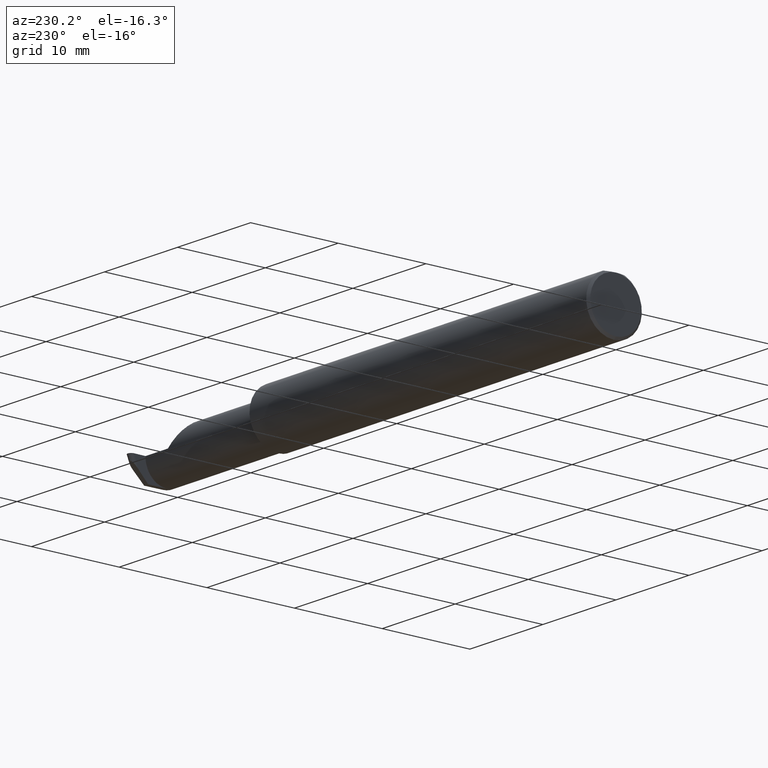
[diagram: clean part render]
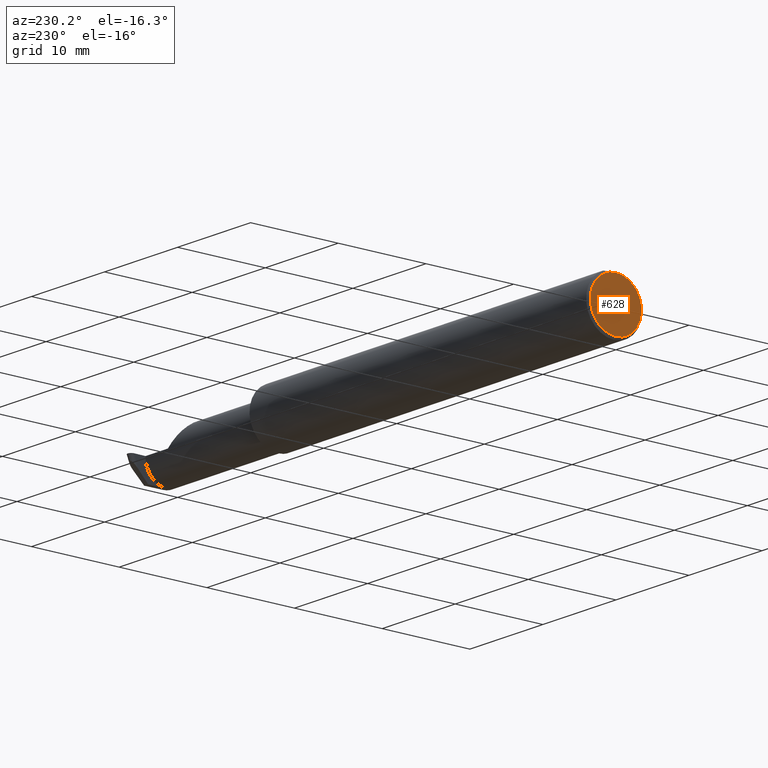
[diagram: same view with one face highlighted and labeled with its STEP entity id]
A machine part, auxiliary view. The second image highlights one B-rep face of the part: STEP entity #628.
In plain terms, the highlighted planar face has unit normal (1, 0, 0).
Its self-contained STEP definition (entity closure, byte-faithful):
#15 = CARTESIAN_POINT ( 'NONE',  ( 0.000000000000000000, 0.000000000000000000, -0.1149999999999997274 ) ) ;
#89 = EDGE_CURVE ( 'NONE', #429, #318, #205, .T. ) ;
#91 = ORIENTED_EDGE ( 'NONE', *, *, #478, .T. ) ;
#115 = AXIS2_PLACEMENT_3D ( 'NONE', #493, #753, #327 ) ;
#117 = CARTESIAN_POINT ( 'NONE',  ( 0.000000000000000000, 3.414809992080329023E-17, 0.1149999999999999217 ) ) ;
#133 = AXIS2_PLACEMENT_3D ( 'NONE', #427, #178, #353 ) ;
#178 = DIRECTION ( 'NONE',  ( 1.000000000000000000, 0.000000000000000000, 0.000000000000000000 ) ) ;
#205 = CIRCLE ( 'NONE', #461, 0.1149999999999997274 ) ;
#318 = VERTEX_POINT ( 'NONE', #117 ) ;
#327 = DIRECTION ( 'NONE',  ( 0.000000000000000000, 0.000000000000000000, -1.000000000000000000 ) ) ;
#353 = DIRECTION ( 'NONE',  ( 0.000000000000000000, 0.000000000000000000, -1.000000000000000000 ) ) ;
#397 = DIRECTION ( 'NONE',  ( -1.000000000000000000, -0.000000000000000000, -0.000000000000000000 ) ) ;
#406 = PLANE ( 'NONE',  #133 ) ;
#427 = CARTESIAN_POINT ( 'NONE',  ( 0.000000000000000000, 0.000000000000000000, 0.000000000000000000 ) ) ;
#429 = VERTEX_POINT ( 'NONE', #15 ) ;
#461 = AXIS2_PLACEMENT_3D ( 'NONE', #756, #397, #640 ) ;
#478 = EDGE_CURVE ( 'NONE', #318, #429, #764, .T. ) ;
#493 = CARTESIAN_POINT ( 'NONE',  ( 0.000000000000000000, 0.000000000000000000, 0.000000000000000000 ) ) ;
#556 = ORIENTED_EDGE ( 'NONE', *, *, #89, .T. ) ;
#628 = ADVANCED_FACE ( 'NONE', ( #731 ), #406, .F. ) ;
#640 = DIRECTION ( 'NONE',  ( 0.000000000000000000, 0.000000000000000000, -1.000000000000000000 ) ) ;
#704 = EDGE_LOOP ( 'NONE', ( #91, #556 ) ) ;
#731 = FACE_OUTER_BOUND ( 'NONE', #704, .T. ) ;
#753 = DIRECTION ( 'NONE',  ( -1.000000000000000000, -0.000000000000000000, -0.000000000000000000 ) ) ;
#756 = CARTESIAN_POINT ( 'NONE',  ( 0.000000000000000000, 0.000000000000000000, 0.000000000000000000 ) ) ;
#764 = CIRCLE ( 'NONE', #115, 0.1149999999999997274 ) ;